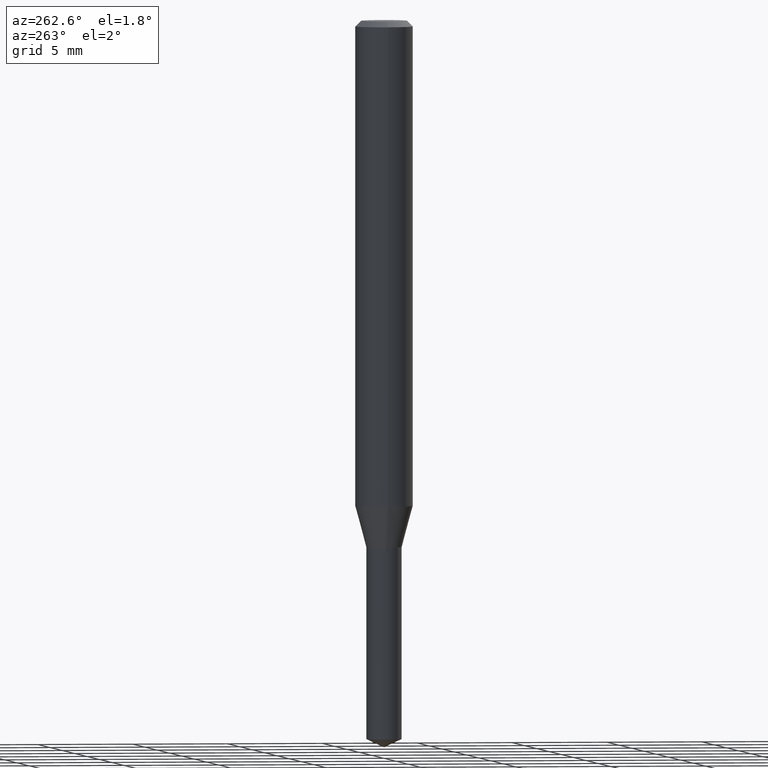
[diagram: clean part render]
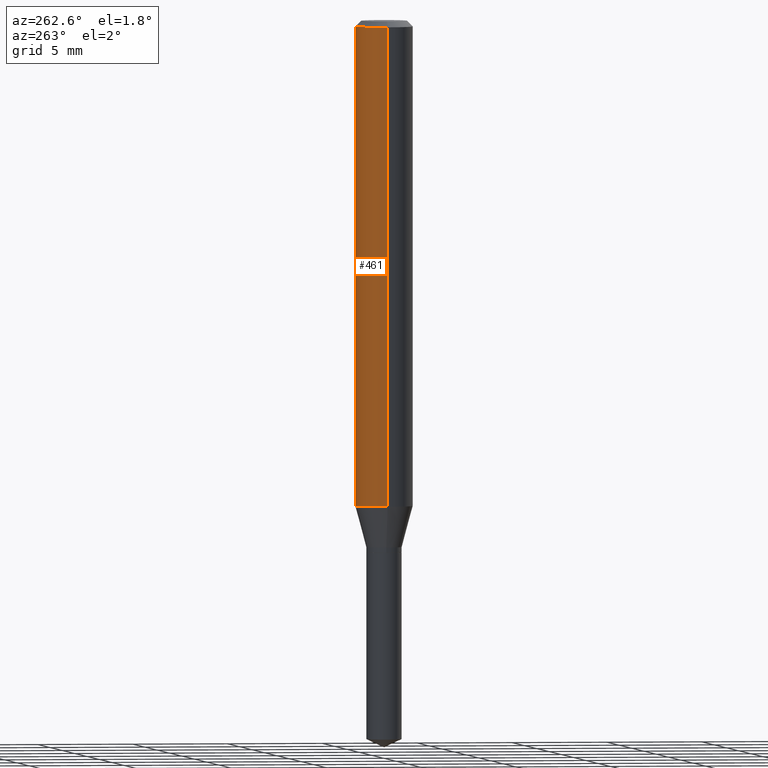
[diagram: same view with one face highlighted and labeled with its STEP entity id]
A machine part, auxiliary view. The second image highlights one B-rep face of the part: STEP entity #461.
In plain terms, the highlighted cylindrical surface (edge-blend (fillet) strip) has radius 1.4999 mm, axis along (-0, 0, 1).
Its self-contained STEP definition (entity closure, byte-faithful):
#19 = LINE ( 'NONE', #92, #81 ) ;
#33 = VERTEX_POINT ( 'NONE', #453 ) ;
#49 = AXIS2_PLACEMENT_3D ( 'NONE', #120, #171, #424 ) ;
#50 = ORIENTED_EDGE ( 'NONE', *, *, #341, .F. ) ;
#52 = CYLINDRICAL_SURFACE ( 'NONE', #49, 0.05905000000000006771 ) ;
#69 = VERTEX_POINT ( 'NONE', #356 ) ;
#81 = VECTOR ( 'NONE', #398, 39.37007874015748143 ) ;
#91 = CARTESIAN_POINT ( 'NONE',  ( 0.05905000000000011628, -3.900574887644841668E-15, -0.9990690492085645413 ) ) ;
#92 = CARTESIAN_POINT ( 'NONE',  ( 0.05905000000000006771, -4.123439461173745257E-16, 2.879382386107503723E-30 ) ) ;
#93 = EDGE_CURVE ( 'NONE', #455, #33, #334, .T. ) ;
#119 = EDGE_LOOP ( 'NONE', ( #160, #454, #306, #50 ) ) ;
#120 = CARTESIAN_POINT ( 'NONE',  ( 0.000000000000000000, 0.000000000000000000, 0.000000000000000000 ) ) ;
#122 = AXIS2_PLACEMENT_3D ( 'NONE', #276, #318, #349 ) ;
#132 = FACE_OUTER_BOUND ( 'NONE', #119, .T. ) ;
#160 = ORIENTED_EDGE ( 'NONE', *, *, #483, .T. ) ;
#171 = DIRECTION ( 'NONE',  ( -2.445468806185136597E-29, 3.491481338843145583E-15, 1.000000000000000000 ) ) ;
#203 = LINE ( 'NONE', #442, #214 ) ;
#209 = DIRECTION ( 'NONE',  ( -2.445468806185136877E-29, 3.491481338843145188E-15, 1.000000000000000000 ) ) ;
#212 = DIRECTION ( 'NONE',  ( 1.000000000000000000, -6.982962677686265133E-15, 0.000000000000000000 ) ) ;
#214 = VECTOR ( 'NONE', #209, 39.37007874015748143 ) ;
#264 = EDGE_CURVE ( 'NONE', #69, #33, #203, .T. ) ;
#276 = CARTESIAN_POINT ( 'NONE',  ( 2.888098660104663766E-31, -4.123439461173779647E-17, -0.01181000000000007044 ) ) ;
#306 = ORIENTED_EDGE ( 'NONE', *, *, #93, .F. ) ;
#308 = VERTEX_POINT ( 'NONE', #91 ) ;
#318 = DIRECTION ( 'NONE',  ( -2.445468806185136597E-29, 3.491481338843145583E-15, 1.000000000000000000 ) ) ;
#334 = CIRCLE ( 'NONE', #122, 0.05904999999999999832 ) ;
#341 = EDGE_CURVE ( 'NONE', #308, #455, #19, .T. ) ;
#349 = DIRECTION ( 'NONE',  ( 1.000000000000000000, -6.982962677686266711E-15, 0.000000000000000000 ) ) ;
#356 = CARTESIAN_POINT ( 'NONE',  ( -0.05905000000000011628, -3.068655456061127255E-15, -0.9990690492085645413 ) ) ;
#394 = DIRECTION ( 'NONE',  ( -2.445468806185136597E-29, 3.491481338843145583E-15, 1.000000000000000000 ) ) ;
#396 = CIRCLE ( 'NONE', #444, 0.05905000000000013016 ) ;
#398 = DIRECTION ( 'NONE',  ( -2.445468806185136877E-29, 3.491481338843145188E-15, 1.000000000000000000 ) ) ;
#424 = DIRECTION ( 'NONE',  ( 1.000000000000000000, -6.982962677686266711E-15, 4.876176775795936353E-29 ) ) ;
#435 = CARTESIAN_POINT ( 'NONE',  ( 2.443192195064587800E-29, -3.488230941527467537E-15, -0.9990690492085645413 ) ) ;
#442 = CARTESIAN_POINT ( 'NONE',  ( -0.05905000000000006771, 4.195754854663396409E-16, -2.904631170795525045E-30 ) ) ;
#444 = AXIS2_PLACEMENT_3D ( 'NONE', #435, #394, #212 ) ;
#449 = CARTESIAN_POINT ( 'NONE',  ( 0.05904999999999999832, -4.535783407291118600E-16, -0.01181000000000007044 ) ) ;
#453 = CARTESIAN_POINT ( 'NONE',  ( -0.05904999999999999832, -1.345157182603262351E-15, -0.01181000000000007044 ) ) ;
#454 = ORIENTED_EDGE ( 'NONE', *, *, #264, .T. ) ;
#455 = VERTEX_POINT ( 'NONE', #449 ) ;
#461 = ADVANCED_FACE ( 'NONE', ( #132 ), #52, .T. ) ;
#483 = EDGE_CURVE ( 'NONE', #308, #69, #396, .T. ) ;